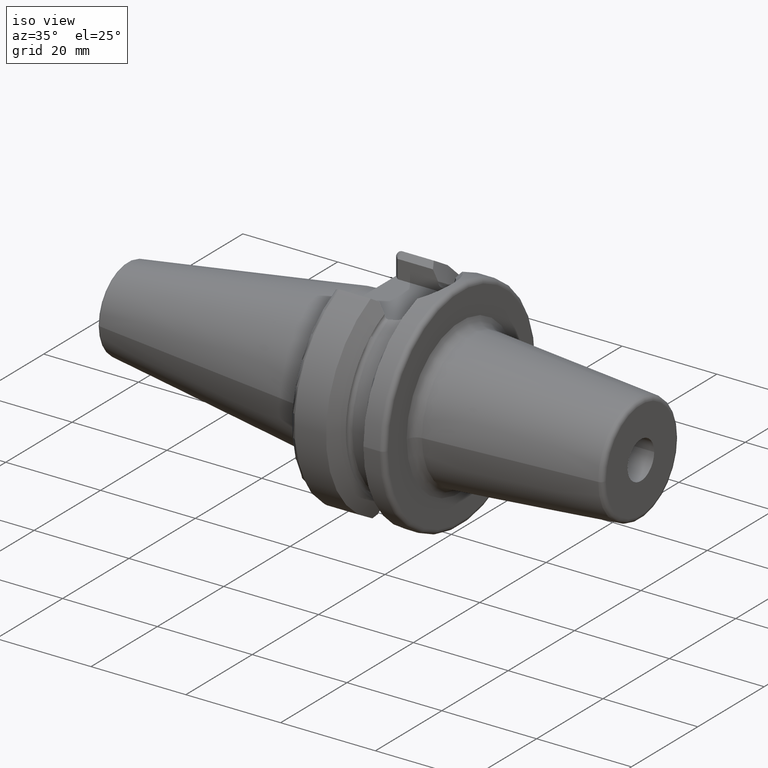
[diagram: clean part render]
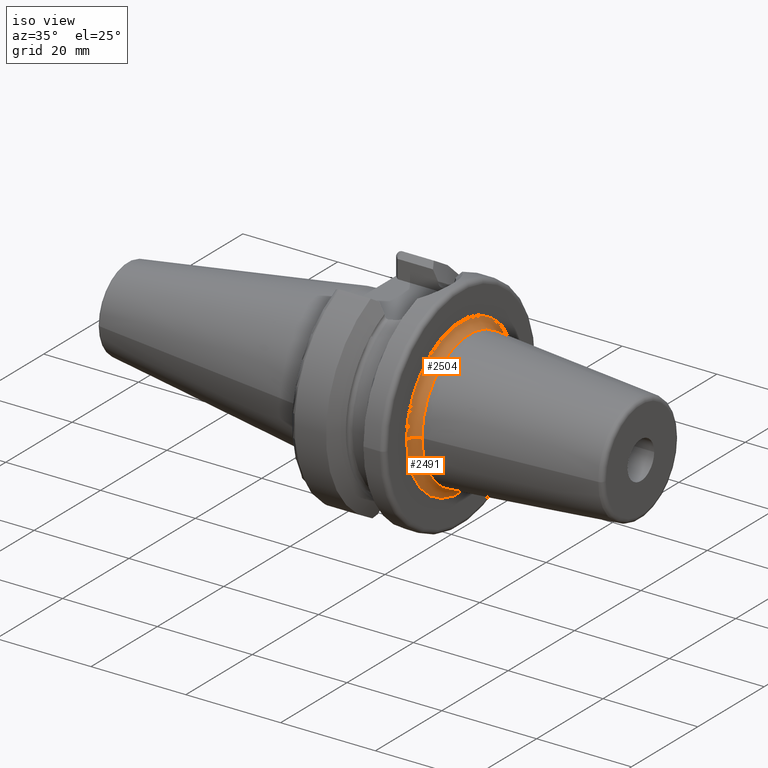
[diagram: same view with one multi-face feature highlighted, each face labeled with its STEP entity id]
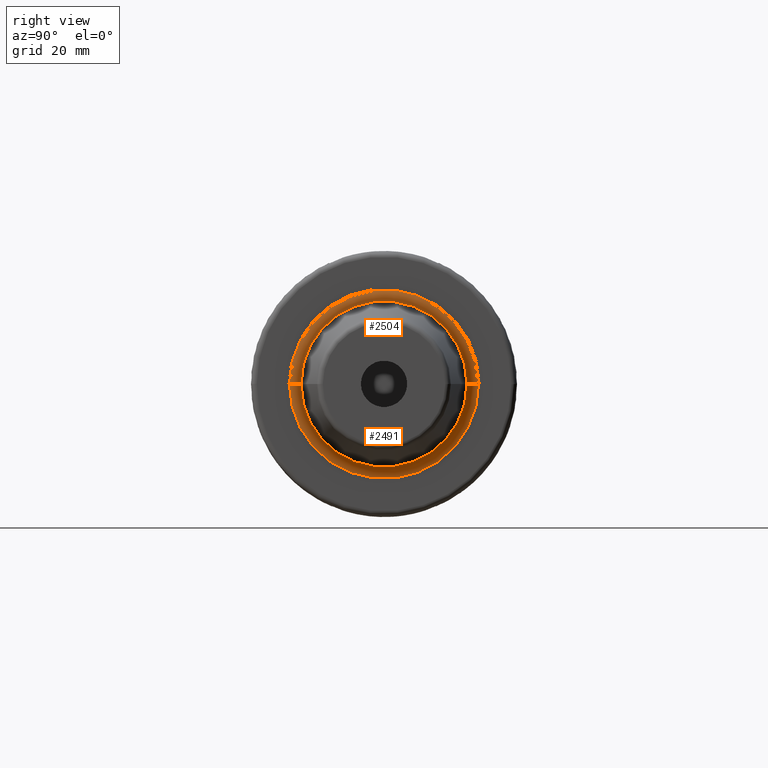
[diagram: same view with one multi-face feature highlighted, each face labeled with its STEP entity id]
A machine part, iso view. The highlighted faces form ONE feature: a constant-radius fillet chain: 2 tangent blend faces with common blend radius 2 mm. The faces share edges in the B-rep.
A second angle (right view) of the same feature is appended — it is thin or edge-on in the first view.
Their STEP definitions:
[1] entity #2504 (Torus):
#827=CARTESIAN_POINT('',(2.2E1,0.E0,0.E0));
#828=DIRECTION('',(1.E0,0.E0,0.E0));
#829=DIRECTION('',(0.E0,1.E0,0.E0));
#830=AXIS2_PLACEMENT_3D('',#827,#828,#829);
#832=CARTESIAN_POINT('',(2.4E1,-1.633944584265E1,1.272842942157E-12));
#833=DIRECTION('',(0.E0,-7.790122713569E-14,-1.E0));
#834=DIRECTION('',(-1.E0,2.309263891220E-13,0.E0));
#835=AXIS2_PLACEMENT_3D('',#832,#833,#834);
#837=CARTESIAN_POINT('',(2.4E1,1.633944584265E1,-1.274452765543E-12));
#838=DIRECTION('',(0.E0,7.800010637382E-14,1.E0));
#839=DIRECTION('',(-1.E0,-2.291500322826E-13,0.E0));
#840=AXIS2_PLACEMENT_3D('',#837,#838,#839);
#847=CARTESIAN_POINT('',(2.384308180854E1,0.E0,0.E0));
#848=DIRECTION('',(1.E0,0.E0,0.E0));
#849=DIRECTION('',(0.E0,1.E0,0.E0));
#850=AXIS2_PLACEMENT_3D('',#847,#848,#849);
#1373=CARTESIAN_POINT('',(2.2E1,-1.633944584265E1,0.E0));
#1374=CARTESIAN_POINT('',(2.2E1,1.633944584265E1,0.E0));
#1375=VERTEX_POINT('',#1373);
#1376=VERTEX_POINT('',#1374);
#1377=CARTESIAN_POINT('',(2.384308180854E1,-1.434561117519E1,0.E0));
#1378=CARTESIAN_POINT('',(2.384308180854E1,1.434561117519E1,0.E0));
#1379=VERTEX_POINT('',#1377);
#1380=VERTEX_POINT('',#1378);
#2492=CARTESIAN_POINT('',(2.4E1,0.E0,0.E0));
#2493=DIRECTION('',(1.E0,0.E0,0.E0));
#2494=DIRECTION('',(0.E0,9.999299961249E-1,-1.183227998951E-2));
#2495=AXIS2_PLACEMENT_3D('',#2492,#2493,#2494);
#2496=TOROIDAL_SURFACE('',#2495,1.633944584265E1,2.E0);
#2497=ORIENTED_EDGE('',*,*,#2472,.F.);
#2498=ORIENTED_EDGE('',*,*,#2487,.T.);
#2500=ORIENTED_EDGE('',*,*,#2499,.T.);
#2501=ORIENTED_EDGE('',*,*,#2483,.F.);
#2502=EDGE_LOOP('',(#2497,#2498,#2500,#2501));
#2503=FACE_OUTER_BOUND('',#2502,.F.);
#2504=ADVANCED_FACE('',(#2503),#2496,.F.);
#831=CIRCLE('',#830,1.633944584265E1);
#836=CIRCLE('',#835,2.E0);
#841=CIRCLE('',#840,2.E0);
#851=CIRCLE('',#850,1.434561117519E1);
#2472=EDGE_CURVE('',#1376,#1375,#831,.T.);
#2483=EDGE_CURVE('',#1375,#1379,#836,.T.);
#2487=EDGE_CURVE('',#1376,#1380,#841,.T.);
#2499=EDGE_CURVE('',#1380,#1379,#851,.T.);
[2] entity #2491 (Torus):
#822=CARTESIAN_POINT('',(2.2E1,0.E0,0.E0));
#823=DIRECTION('',(1.E0,0.E0,0.E0));
#824=DIRECTION('',(0.E0,-1.E0,0.E0));
#825=AXIS2_PLACEMENT_3D('',#822,#823,#824);
#832=CARTESIAN_POINT('',(2.4E1,-1.633944584265E1,1.272842942157E-12));
#833=DIRECTION('',(0.E0,-7.790122713569E-14,-1.E0));
#834=DIRECTION('',(-1.E0,2.309263891220E-13,0.E0));
#835=AXIS2_PLACEMENT_3D('',#832,#833,#834);
#837=CARTESIAN_POINT('',(2.4E1,1.633944584265E1,-1.274452765543E-12));
#838=DIRECTION('',(0.E0,7.800010637382E-14,1.E0));
#839=DIRECTION('',(-1.E0,-2.291500322826E-13,0.E0));
#840=AXIS2_PLACEMENT_3D('',#837,#838,#839);
#871=CARTESIAN_POINT('',(2.384308180854E1,0.E0,0.E0));
#872=DIRECTION('',(1.E0,0.E0,0.E0));
#873=DIRECTION('',(0.E0,-1.E0,0.E0));
#874=AXIS2_PLACEMENT_3D('',#871,#872,#873);
#1373=CARTESIAN_POINT('',(2.2E1,-1.633944584265E1,0.E0));
#1374=CARTESIAN_POINT('',(2.2E1,1.633944584265E1,0.E0));
#1375=VERTEX_POINT('',#1373);
#1376=VERTEX_POINT('',#1374);
#1377=CARTESIAN_POINT('',(2.384308180854E1,-1.434561117519E1,0.E0));
#1378=CARTESIAN_POINT('',(2.384308180854E1,1.434561117519E1,0.E0));
#1379=VERTEX_POINT('',#1377);
#1380=VERTEX_POINT('',#1378);
#2477=CARTESIAN_POINT('',(2.4E1,0.E0,0.E0));
#2478=DIRECTION('',(1.E0,0.E0,0.E0));
#2479=DIRECTION('',(0.E0,-9.999299961249E-1,1.183227998951E-2));
#2480=AXIS2_PLACEMENT_3D('',#2477,#2478,#2479);
#2481=TOROIDAL_SURFACE('',#2480,1.633944584265E1,2.E0);
#2482=ORIENTED_EDGE('',*,*,#2470,.F.);
#2484=ORIENTED_EDGE('',*,*,#2483,.T.);
#2486=ORIENTED_EDGE('',*,*,#2485,.T.);
#2488=ORIENTED_EDGE('',*,*,#2487,.F.);
#2489=EDGE_LOOP('',(#2482,#2484,#2486,#2488));
#2490=FACE_OUTER_BOUND('',#2489,.F.);
#2491=ADVANCED_FACE('',(#2490),#2481,.F.);
#826=CIRCLE('',#825,1.633944584265E1);
#836=CIRCLE('',#835,2.E0);
#841=CIRCLE('',#840,2.E0);
#875=CIRCLE('',#874,1.434561117519E1);
#2470=EDGE_CURVE('',#1375,#1376,#826,.T.);
#2483=EDGE_CURVE('',#1375,#1379,#836,.T.);
#2485=EDGE_CURVE('',#1379,#1380,#875,.T.);
#2487=EDGE_CURVE('',#1376,#1380,#841,.T.);